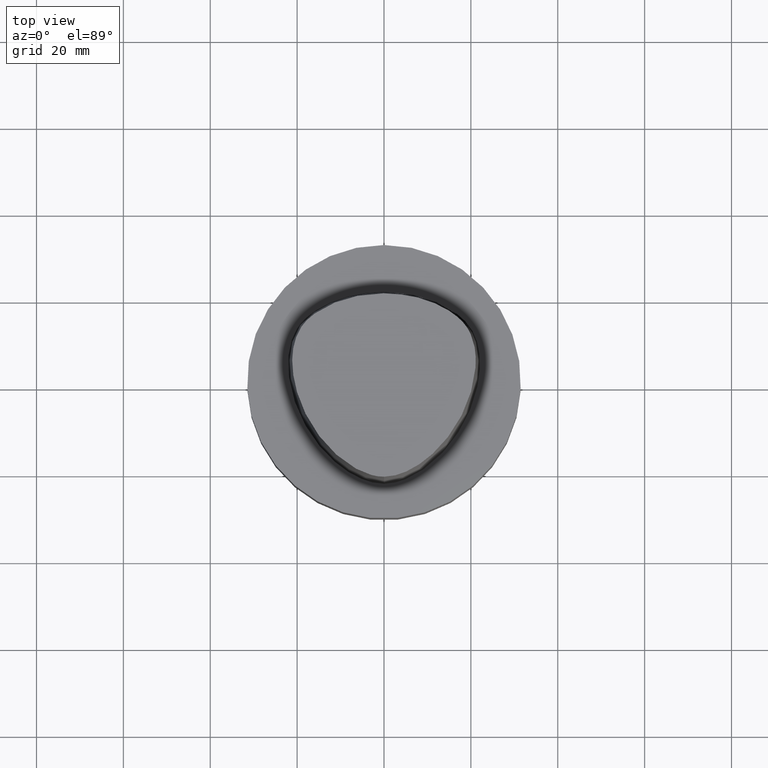
[diagram: clean part render]
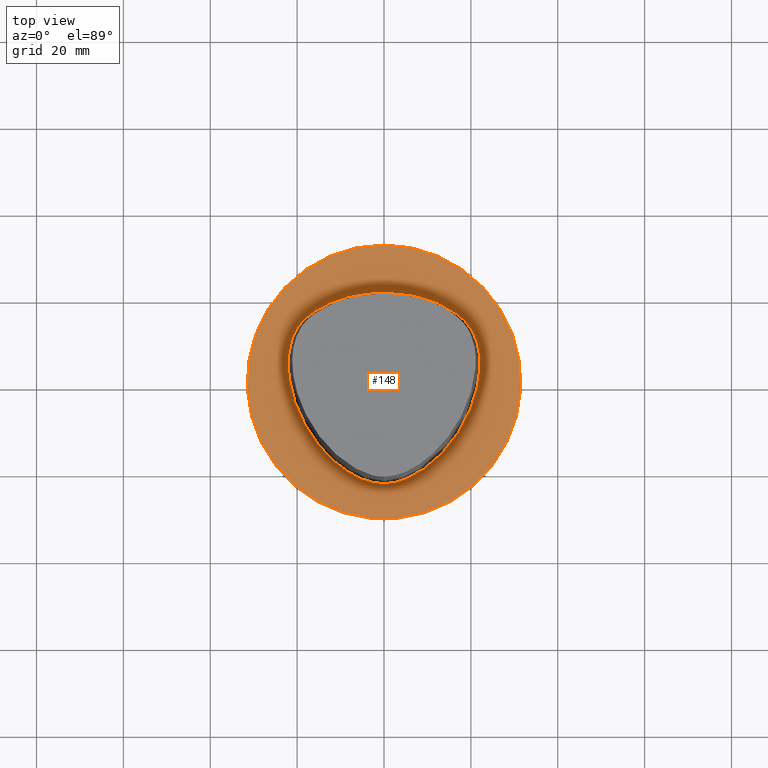
[diagram: same view with one face highlighted and labeled with its STEP entity id]
A machine part, top view. The second image highlights one B-rep face of the part: STEP entity #148.
In plain terms, the highlighted planar face has unit normal (-0, -0, 1).
Its self-contained STEP definition (entity closure, byte-faithful):
#108=EDGE_CURVE('Unnamed[1]',#243,#243,#244,.T.);
#121=EDGE_CURVE('Unnamed[1]',#193,#263,#264,.T.);
#148=ADVANCED_FACE('Unnamed[1]',(#303,#304),#305,.T.);
#150=EDGE_CURVE('Unnamed[1]',#263,#279,#307,.T.);
#165=EDGE_CURVE('Unnamed[1]',#279,#193,#327,.T.);
#193=VERTEX_POINT('',#351);
#243=VERTEX_POINT('',#485);
#244=CIRCLE('',#486,31.5);
#263=VERTEX_POINT('',#526);
#264=B_SPLINE_CURVE_WITH_KNOTS('',3,(#527,#528,#529,#530,#531,#532,#533,#534,#535,#536,#537,#538,#539,#540,#541,#542,#543,#544),.UNSPECIFIED.,.F.,.F.,(4,1,1,1,1,1,1,1,1,2,1,1,1,1,4),(-6.6151339308743,-6.20168806019465,-5.78824218951501,-5.37479631883537,-4.96135044815572,-4.13445870679644,-3.30756696543715,-2.89412109475751,-2.48067522407786,-2.06722935339822,-1.65378348271857,-1.24033761203893,-0.826891741359287,-0.413445870679644,0.0),.UNSPECIFIED.);
#279=VERTEX_POINT('',#563);
#303=FACE_BOUND('',#611,.T.);
#304=FACE_OUTER_BOUND('',#612,.T.);
#305=PLANE('',#613);
#307=CIRCLE('',#616,0.949936168436318);
#327=B_SPLINE_CURVE_WITH_KNOTS('',3,(#641,#642,#643,#644,#645,#646,#647,#648,#649,#650,#651,#652,#653,#654,#655,#656,#657),.UNSPECIFIED.,.F.,.F.,(4,1,1,1,1,1,1,1,1,1,1,1,1,1,4),(-13.2302678617486,-12.816821991069,-12.4033761203893,-11.9899302497097,-11.57648437903,-11.1630385083504,-10.9563155730106,-10.7495926376707,-10.3361467669911,-9.92270089631145,-9.09580915495216,-8.26891741359287,-7.44202567223358,-7.02857980155394,-6.6151339308743),.UNSPECIFIED.);
#351=CARTESIAN_POINT('',(0.04359356758149,-23.4691235068931,7.78075697532443E-032));
#485=CARTESIAN_POINT('',(-3.88267476788467E-031,31.5,3.85763741731416E-015));
#486=AXIS2_PLACEMENT_3D('',#794,#795,#796);
#526=CARTESIAN_POINT('',(-0.045171994691285,20.6766009553285,1.6755590516169E-031));
#527=CARTESIAN_POINT('',(0.04359356758149,-23.4691235068931,7.78075697532443E-032));
#528=CARTESIAN_POINT('',(-1.4714994713963,-23.4767895315797,2.46519032881566E-032));
#529=CARTESIAN_POINT('',(-4.43923476371401,-22.821149804767,-4.93038065763132E-032));
#530=CARTESIAN_POINT('',(-8.35043230079961,-20.8000751253325,-9.86076131526265E-032));
#531=CARTESIAN_POINT('',(-11.744900222602,-18.1556117874078,-1.97215226305253E-031));
#532=CARTESIAN_POINT('',(-15.6989602501314,-14.0406306929147,-1.97215226305253E-031));
#533=CARTESIAN_POINT('',(-19.5352875070682,-8.00624990770787,1.97215226305253E-031));
#534=CARTESIAN_POINT('',(-21.7205626190491,-1.16081708945282,0.0));
#535=CARTESIAN_POINT('',(-22.2486616783342,4.54965558738736,0.0));
#536=CARTESIAN_POINT('',(-21.6646421256468,9.00229539124618,0.0));
#537=CARTESIAN_POINT('',(-20.3945635471922,11.7780544971003,0.0));
#538=CARTESIAN_POINT('',(-18.5925528034471,14.1980602922581,0.0));
#539=CARTESIAN_POINT('',(-16.3226584122258,16.1777748720707,0.0));
#540=CARTESIAN_POINT('',(-12.5076407874579,18.2524201541303,9.86076131526265E-032));
#541=CARTESIAN_POINT('',(-8.46776192107786,19.679114377952,9.86076131526265E-032));
#542=CARTESIAN_POINT('',(-4.23043497193604,20.487781597334,1.97215226305253E-031));
#543=CARTESIAN_POINT('',(-1.42313094248379,20.6127745766442,1.10933564796705E-031));
#544=CARTESIAN_POINT('',(-0.045171994691285,20.6766009553285,1.6755590516169E-031));
#563=CARTESIAN_POINT('',(0.044682985379347,20.6765087343109,1.61778115328528E-031));
#611=EDGE_LOOP('',(#848,#849,#850));
#612=EDGE_LOOP('',(#851));
#613=AXIS2_PLACEMENT_3D('',#852,#853,#854);
#616=AXIS2_PLACEMENT_3D('',#855,#856,#857);
#641=CARTESIAN_POINT('',(0.044682985379347,20.6765087343109,1.61778115328528E-031));
#642=CARTESIAN_POINT('',(1.42379272427753,20.6097915814392,8.62816615085482E-032));
#643=CARTESIAN_POINT('',(4.2230955003445,20.4837538303966,1.4791141972894E-031));
#644=CARTESIAN_POINT('',(8.47220762821777,19.6890432607088,9.86076131526265E-032));
#645=CARTESIAN_POINT('',(12.5141247708253,18.2434968480404,0.0));
#646=CARTESIAN_POINT('',(16.3038624872874,16.1734192182143,1.97215226305253E-031));
#647=CARTESIAN_POINT('',(19.1446913988473,13.7036723639434,-1.97215226305253E-031));
#648=CARTESIAN_POINT('',(20.7319894342149,11.1014620996188,0.0));
#649=CARTESIAN_POINT('',(21.7831756505763,8.28099229708081,-1.97215226305253E-031));
#650=CARTESIAN_POINT('',(22.2258240701438,4.60865440596506,0.0));
#651=CARTESIAN_POINT('',(21.7436130080666,-1.11326526354485,0.0));
#652=CARTESIAN_POINT('',(19.5519487660502,-7.95432366164584,0.0));
#653=CARTESIAN_POINT('',(14.9574167123838,-15.2089785567293,0.0));
#654=CARTESIAN_POINT('',(9.66840283021945,-20.0827414369705,-9.86076131526265E-032));
#655=CARTESIAN_POINT('',(4.51628650521788,-22.7946374572188,-9.86076131526265E-032));
#656=CARTESIAN_POINT('',(1.55867251738073,-23.4612972770043,-1.23259516440783E-032));
#657=CARTESIAN_POINT('',(0.04359356758149,-23.4691235068931,7.78075697532443E-032));
#794=CARTESIAN_POINT('',(0.0,0.0,0.0));
#795=DIRECTION('',(6.12323399573677E-017,1.22464679914735E-016,-1.0));
#796=DIRECTION('',(-1.23259516440783E-032,1.0,1.22464679914735E-016));
#848=ORIENTED_EDGE('',*,*,#165,.T.);
#849=ORIENTED_EDGE('',*,*,#121,.T.);
#850=ORIENTED_EDGE('',*,*,#150,.T.);
#851=ORIENTED_EDGE('',*,*,#108,.F.);
#852=CARTESIAN_POINT('',(-1.94133738394233E-031,15.75,1.92881870865708E-015));
#853=DIRECTION('',(-6.12323399573677E-017,-1.22464679914735E-016,1.0));
#854=DIRECTION('',(1.23259516440783E-032,-1.0,-1.22464679914735E-016));
#855=CARTESIAN_POINT('',(-0.001218547003662,19.7276821925089,1.97178046083078E-015));
#856=DIRECTION('',(6.12323399573677E-017,1.22464679914735E-016,-1.0));
#857=DIRECTION('',(-0.046269895968506,0.998928974816059,1.19500303158668E-016));